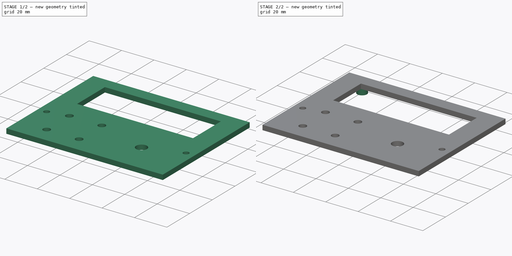
[diagram: build sequence overview — one tinted view per stage of 2, left to right]
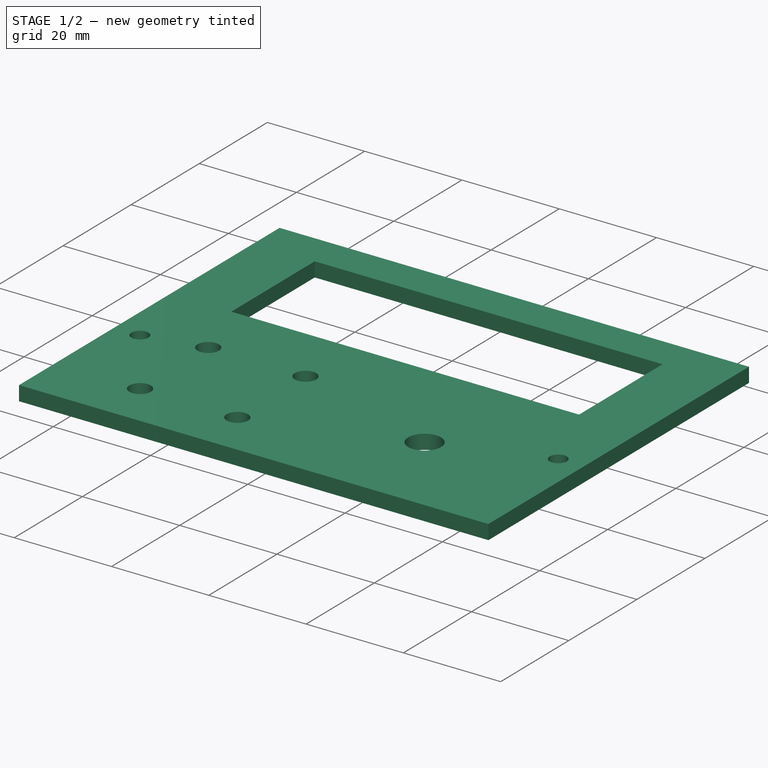
[diagram: stage 1 of 2 — iso view after this stage's code; geometry added in this stage tinted green]
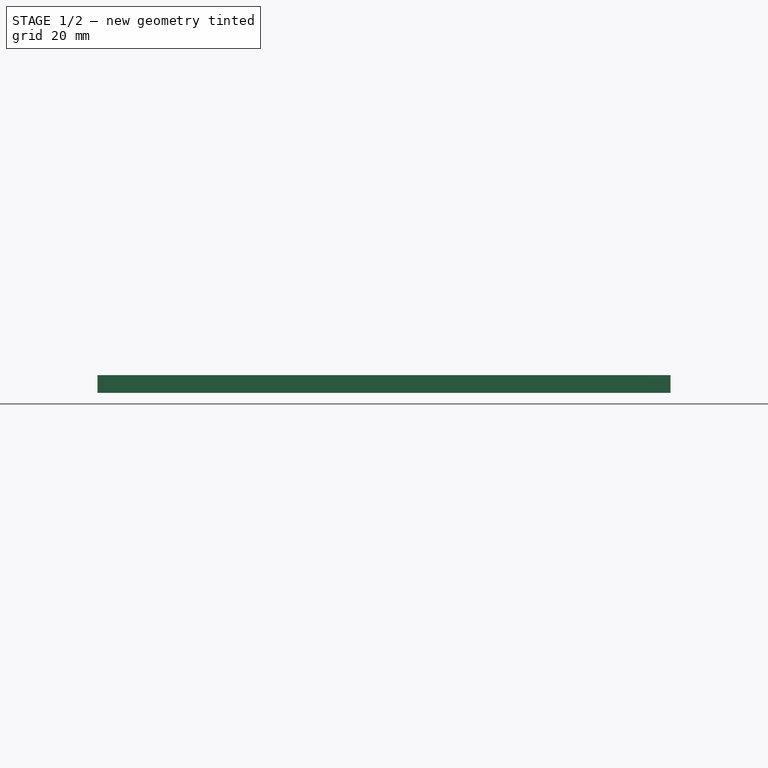
[diagram: stage 1 of 2 — front view after this stage's code; geometry added in this stage tinted green]
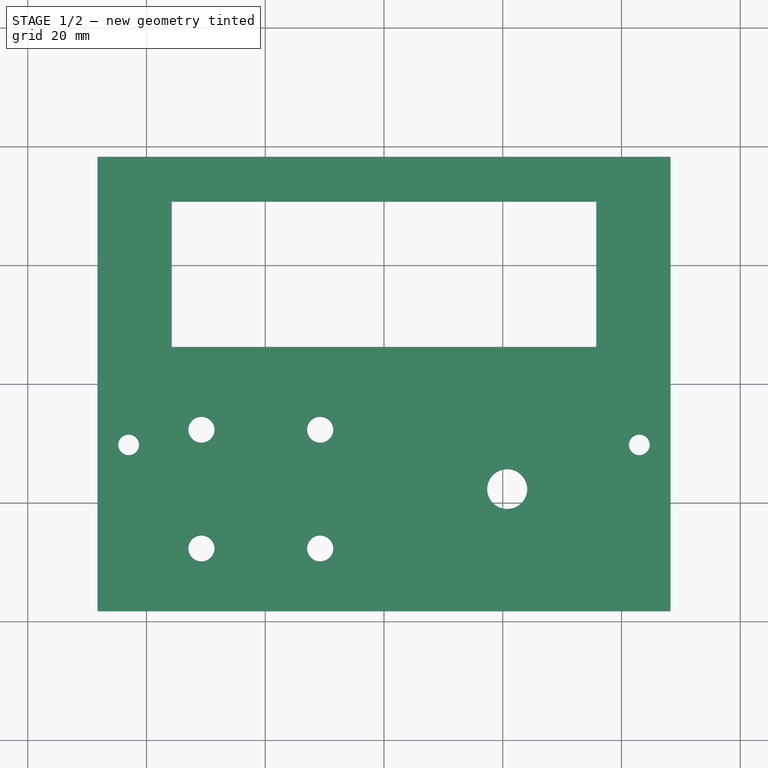
[diagram: stage 1 of 2 — top view after this stage's code; geometry added in this stage tinted green]
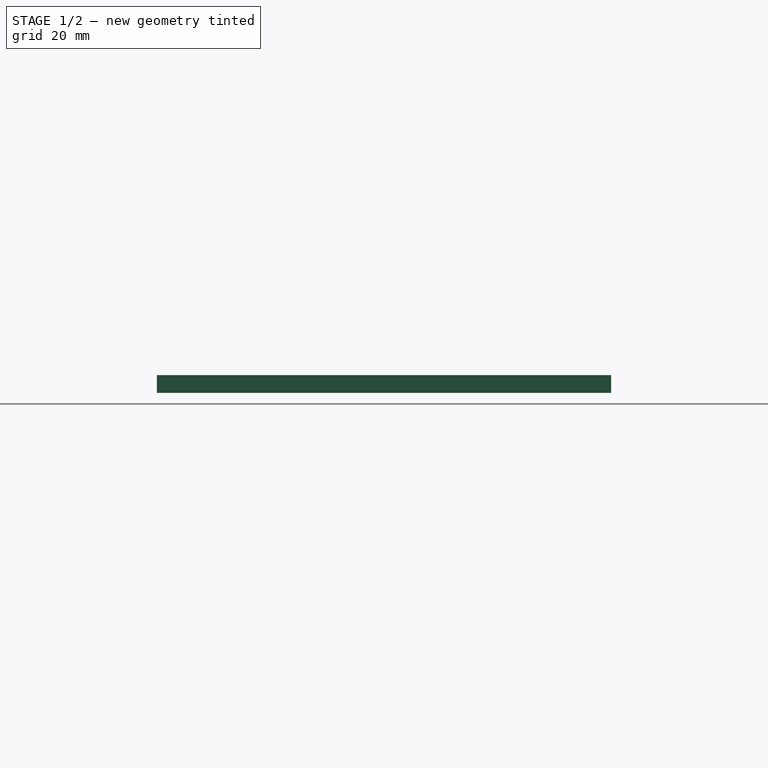
[diagram: stage 1 of 2 — right view after this stage's code; geometry added in this stage tinted green]
FCSTD DOCUMENT  (FreeCAD 0.18R15969 (Git))
Label: eLoad front panel
License: All rights reserved
LicenseURL: http://en.wikipedia.org/wiki/All_rights_reserved
objects: Sketcher::SketchObject×2, PartDesign::Pad×2, PartDesign::Body×1
note: 7 computed .brp shape members not serialized (recipe doc carries the construction recipe); baked Part::Feature solids carry a one-line shape summary decoded from their .brp

FEATURE [Sketcher::SketchObject] Sketch
  MapMode = 5
  Support = -> [XY_Plane]
  sketch-geometry (25):
    g0: LineSegment StartX=-48.25 StartY=38.25 StartZ=0 EndX=48.25 EndY=38.25 EndZ=0
    g1: LineSegment StartX=48.25 StartY=38.25 StartZ=0 EndX=48.25 EndY=-38.25 EndZ=0
    g2: LineSegment StartX=48.25 StartY=-38.25 StartZ=0 EndX=-48.25 EndY=-38.25 EndZ=0
    g3: LineSegment StartX=-48.25 StartY=-38.25 StartZ=0 EndX=-48.25 EndY=38.25 EndZ=0
    g4: LineSegment [constr] StartX=-48.25 StartY=38.25 StartZ=0 EndX=0 EndY=0 EndZ=0
    g5: LineSegment [constr] StartX=0 StartY=0 StartZ=0 EndX=48.25 EndY=38.25 EndZ=0
    g6: LineSegment [constr] StartX=0 StartY=0 StartZ=0 EndX=-48.25 EndY=-38.25 EndZ=0
    g7: Circle CenterX=-43 CenterY=-10.25 CenterZ=0 NormalX=0 NormalY=0 NormalZ=1 AngleXU=0 Radius=1.75
    g8: Circle CenterX=43 CenterY=-10.25 CenterZ=0 NormalX=0 NormalY=0 NormalZ=1 AngleXU=0 Radius=1.75
    g9: LineSegment StartX=-35.75 StartY=30.7229 StartZ=0 EndX=35.75 EndY=30.7229 EndZ=0
    g10: LineSegment StartX=35.75 StartY=30.7229 StartZ=0 EndX=35.75 EndY=6.22289 EndZ=0
    g11: LineSegment StartX=35.75 StartY=6.22289 StartZ=0 EndX=-35.75 EndY=6.22289 EndZ=0
    g12: LineSegment StartX=-35.75 StartY=6.22289 StartZ=0 EndX=-35.75 EndY=30.7229 EndZ=0
    g13: LineSegment [constr] StartX=-10.747 StartY=-27.7003 StartZ=0 EndX=-30.747 EndY=-27.7003 EndZ=0
    g14: LineSegment [constr] StartX=-30.747 StartY=-27.7003 StartZ=0 EndX=-30.747 EndY=-7.70034 EndZ=0
    g15: LineSegment [constr] StartX=-30.747 StartY=-7.70034 StartZ=0 EndX=-10.747 EndY=-7.70034 EndZ=0
    g16: LineSegment [constr] StartX=-10.747 StartY=-7.70034 StartZ=0 EndX=-10.747 EndY=-27.7003 EndZ=0
    g17: Circle CenterX=-30.747 CenterY=-7.70034 CenterZ=0 NormalX=0 NormalY=0 NormalZ=1 AngleXU=0 Radius=2.2
    g18: Circle CenterX=-10.747 CenterY=-7.70034 CenterZ=0 NormalX=0 NormalY=0 NormalZ=1 AngleXU=0 Radius=2.2
    g19: Circle CenterX=-30.747 CenterY=-27.7003 CenterZ=0 NormalX=0 NormalY=0 NormalZ=1 AngleXU=0 Radius=2.2
    g20: Circle CenterX=-10.747 CenterY=-27.7003 CenterZ=0 NormalX=0 NormalY=0 NormalZ=1 AngleXU=0 Radius=2.2
    g21: Circle CenterX=20.747 CenterY=-17.7003 CenterZ=0 NormalX=0 NormalY=0 NormalZ=1 AngleXU=0 Radius=3.37084
    g22: LineSegment [constr] StartX=-30.747 StartY=-7.70034 StartZ=0 EndX=-20.747 EndY=-17.7003 EndZ=0
    g23: LineSegment [constr] StartX=-10.747 StartY=-7.70034 StartZ=0 EndX=-20.747 EndY=-17.7003 EndZ=0
    g24: LineSegment [constr] StartX=-20.747 StartY=-17.7003 StartZ=0 EndX=-30.747 EndY=-27.7003 EndZ=0
  constraints (59):
    c: Coincident(g0,g1)
    c: Coincident(g1,g2)
    c: Coincident(g2,g3)
    c: Coincident(g3,g0)
    c: Horizontal(g0)
    c: Horizontal(g2)
    c: Vertical(g1)
    c: Vertical(g3)
    c: Coincident(g4,g0)
    c: Coincident(g4,g-1)
    c: Coincident(g5,g-1)
    c: Coincident(g5,g0)
    c: Coincident(g6,g-1)
    c: Coincident(g6,g2)
    c: Equal(g4,g5)
    c: Equal(g5,g6)
    c: DistanceY(g3,g3) = 76.5
    c: DistanceX(g0,g0) = 96.5
    c: Symmetric(g7,g8,g-2)
    c: Radius(g8) = 1.75
    c: Equal(g8,g7)
    c: DistanceX(g7,g8) = 86
    c: DistanceY(g2,g7) = 28
    c: Coincident(g9,g10)
    c: Coincident(g10,g11)
    c: Coincident(g11,g12)
    c: Coincident(g12,g9)
    c: Horizontal(g11)
    c: Vertical(g10)
    c: Vertical(g12)
    c: DistanceX(g9,g9) = 71.5
    c: DistanceY(g12,g12) = 24.5
    c: Symmetric(g9,g9,g-2)
    c: Coincident(g13,g14)
    c: Coincident(g14,g15)
    c: Coincident(g15,g16)
    c: Coincident(g16,g13)
    c: Horizontal(g13)
    c: Horizontal(g15)
    c: Vertical(g14)
    c: Vertical(g16)
    c: Coincident(g17,g14)
    c: Coincident(g18,g15)
    c: Coincident(g19,g13)
    c: Coincident(g20,g13)
    c: Radius(g17) = 2.2
    c: Equal(g17,g18)
    c: Equal(g17,g20)
    c: Equal(g17,g19)
    c: Coincident(g22,g17)
    c: Coincident(g23,g18)
    c: Coincident(g23,g22)
    c: Coincident(g24,g22)
    c: Coincident(g24,g19)
    c: Equal(g22,g24)
    c: Equal(g24,g23)
    c: Symmetric(g22,g21,g-2)
    c: DistanceX(g15,g15) = 20
    c: DistanceY(g14,g14) = 20
FEATURE [PartDesign::Pad] Pad
  Length = 3
  Length2 = 100
  Profile = -> Sketch
  Refine = true
  Type = 0
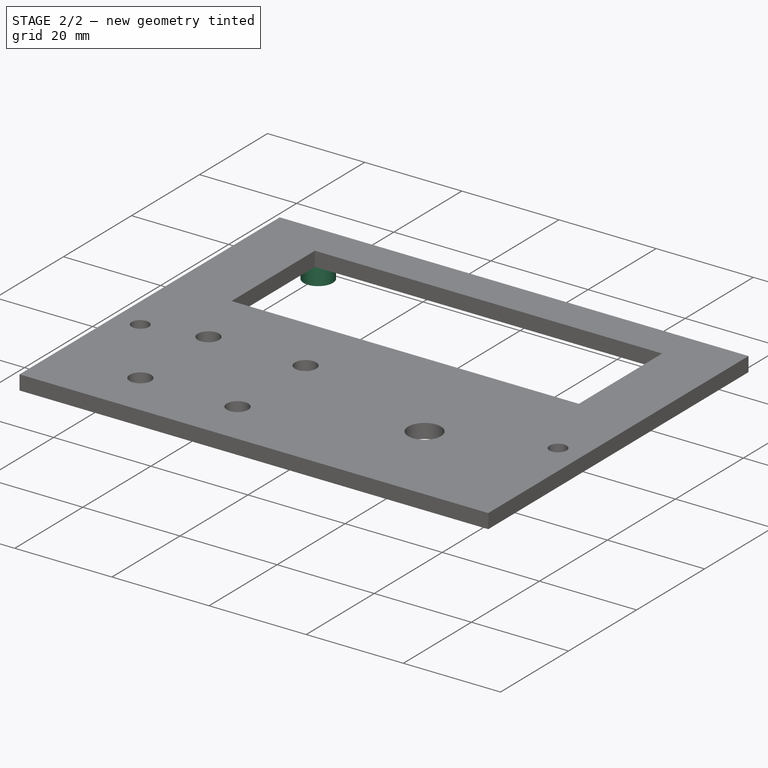
[diagram: stage 2 of 2 — iso view after this stage's code; geometry added in this stage tinted green]
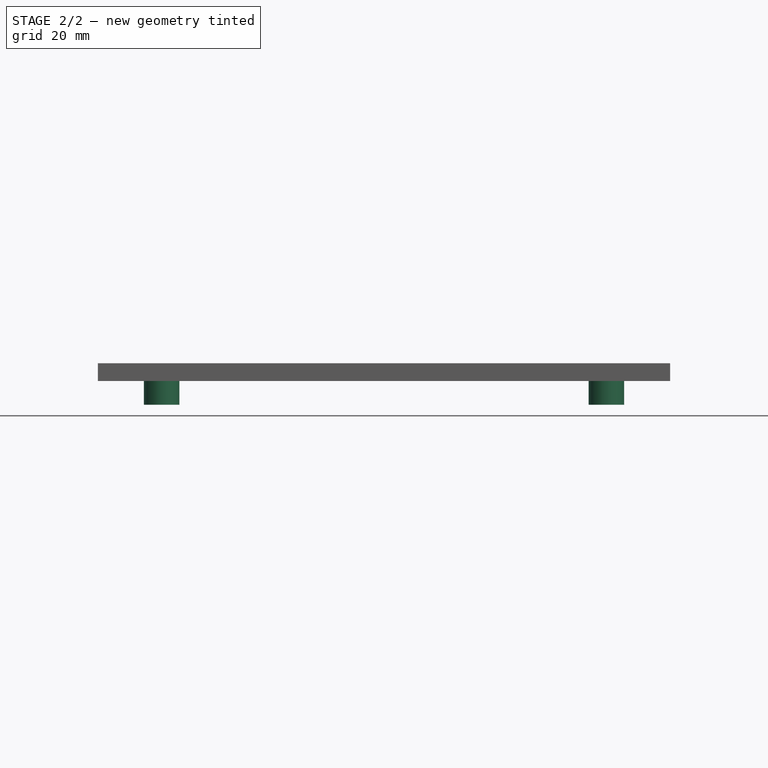
[diagram: stage 2 of 2 — front view after this stage's code; geometry added in this stage tinted green]
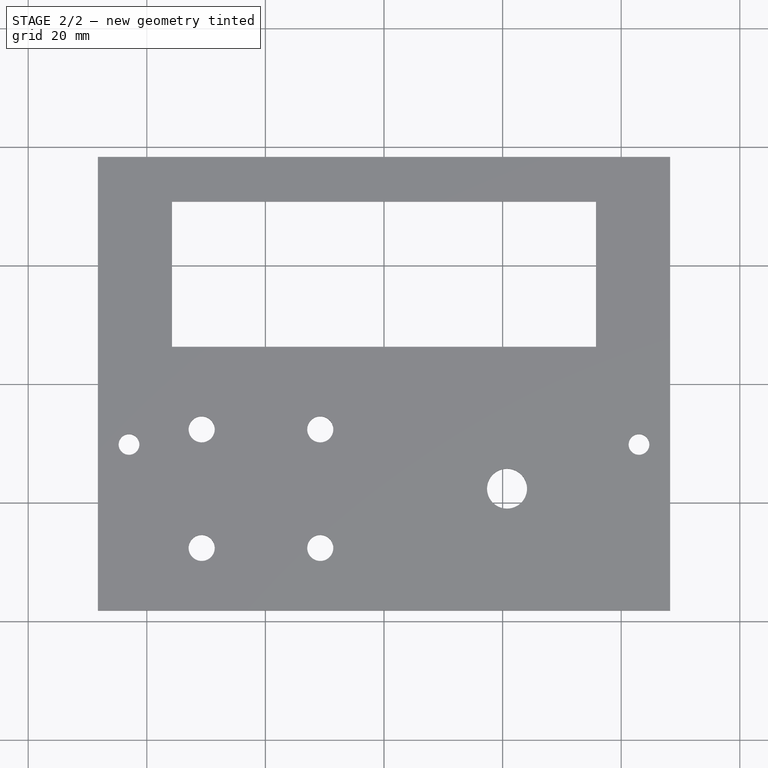
[diagram: stage 2 of 2 — top view after this stage's code; geometry added in this stage tinted green]
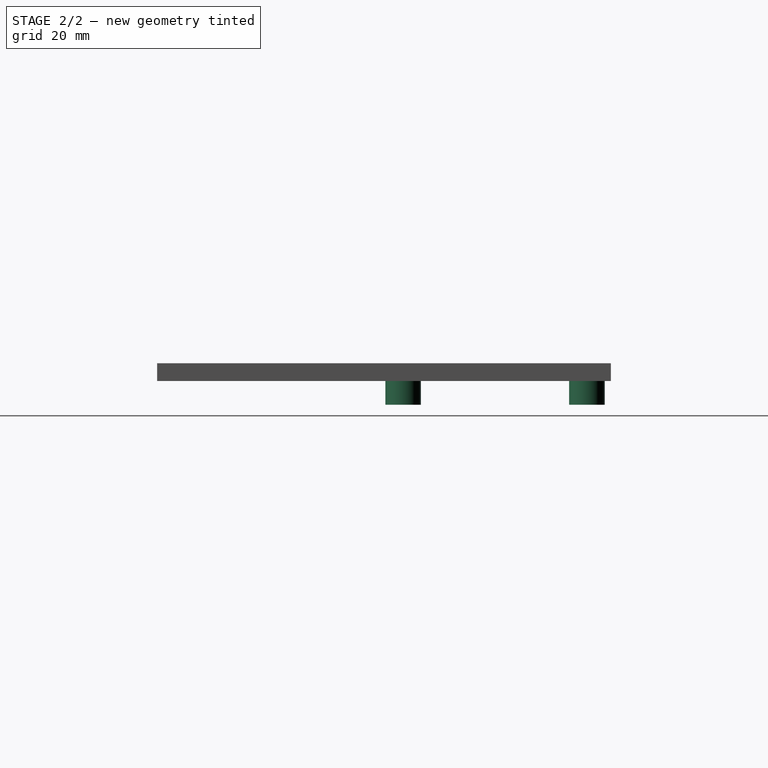
[diagram: stage 2 of 2 — right view after this stage's code; geometry added in this stage tinted green]
FEATURE [Sketcher::SketchObject] Sketch001
  ExternalGeometry = -> [Pad]
  MapMode = 5
  Placement = pos=(0,0,0) rot=(1,0,0;3.14159rad)
  Support = -> [Pad]
  sketch-geometry (8):
    g0: Circle CenterX=37.5 CenterY=-34.2229 CenterZ=0 NormalX=0 NormalY=0 NormalZ=1 AngleXU=0 Radius=1.35
    g1: Circle CenterX=-37.5 CenterY=-3.22289 CenterZ=0 NormalX=0 NormalY=0 NormalZ=1 AngleXU=0 Radius=1.35
    g2: Circle CenterX=37.5 CenterY=-3.22289 CenterZ=0 NormalX=0 NormalY=0 NormalZ=1 AngleXU=0 Radius=1.35
    g3: Circle CenterX=-37.5 CenterY=-34.2229 CenterZ=0 NormalX=0 NormalY=0 NormalZ=1 AngleXU=0 Radius=1.35
    g4: Circle CenterX=-37.5 CenterY=-3.22289 CenterZ=0 NormalX=0 NormalY=0 NormalZ=1 AngleXU=0 Radius=3
    g5: Circle CenterX=37.5 CenterY=-3.22289 CenterZ=0 NormalX=0 NormalY=0 NormalZ=1 AngleXU=0 Radius=3
    g6: Circle CenterX=37.5 CenterY=-34.2229 CenterZ=0 NormalX=0 NormalY=0 NormalZ=1 AngleXU=0 Radius=3
    g7: Circle CenterX=-37.5 CenterY=-34.2229 CenterZ=0 NormalX=0 NormalY=0 NormalZ=1 AngleXU=0 Radius=3
  constraints (18):
    c: Symmetric(g1,g2,g-2)
    c: Symmetric(g3,g0,g-2)
    c: DistanceX(g1,g2) = 75
    c: Radius(g1) = 1.35
    c: Equal(g1,g2)
    c: Equal(g1,g3)
    c: Equal(g1,g0)
    c: DistanceY(g3,g2) = 31
    c: DistanceX(g3,g0) = 75
    c: DistanceY(g-4,g1) = 3
    c: Coincident(g4,g1)
    c: Coincident(g5,g2)
    c: Coincident(g6,g0)
    c: Coincident(g7,g3)
    c: Radius(g7) = 3
    c: Equal(g7,g4)
    c: Equal(g7,g5)
    c: Equal(g7,g6)
FEATURE [PartDesign::Pad] Pad001
  BaseFeature = -> Pad
  Length = 4
  Length2 = 100
  Profile = -> Sketch001
  Refine = true
  Type = 0
FEATURE [PartDesign::Body] Body
  Group = -> [Sketch,Pad,Sketch001,Pad001]
  Origin = -> Origin
  Tip = -> Pad001
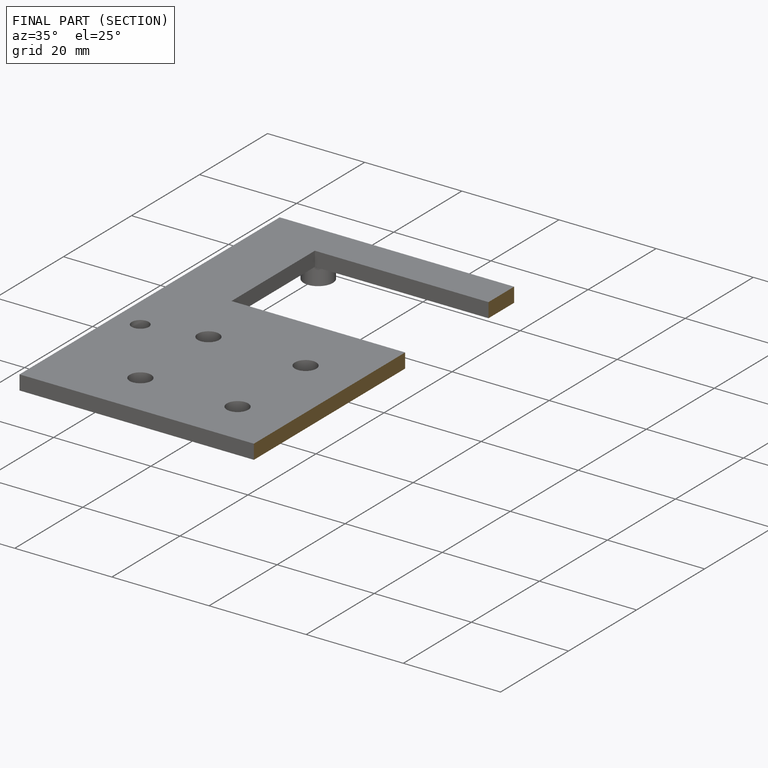
[diagram: finished part — half-section view (interior)]
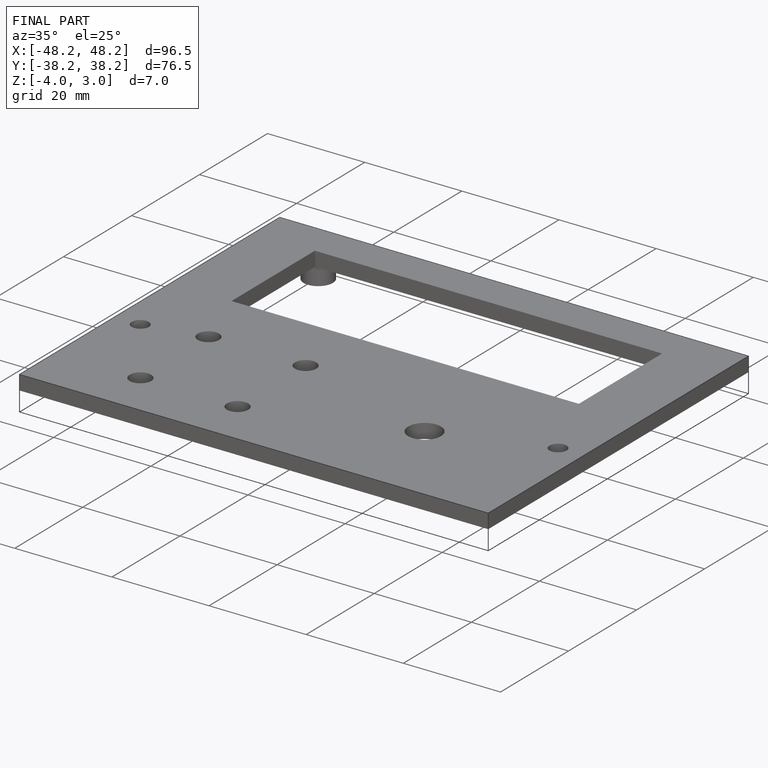
[diagram: finished part — iso view with bounding-box wireframe]
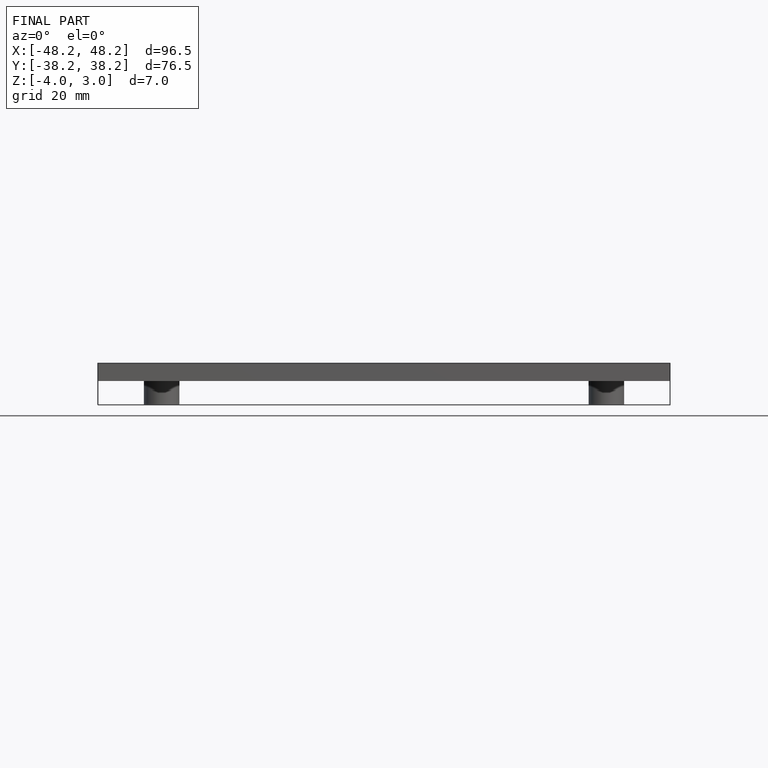
[diagram: finished part — front view with bounding-box wireframe]
